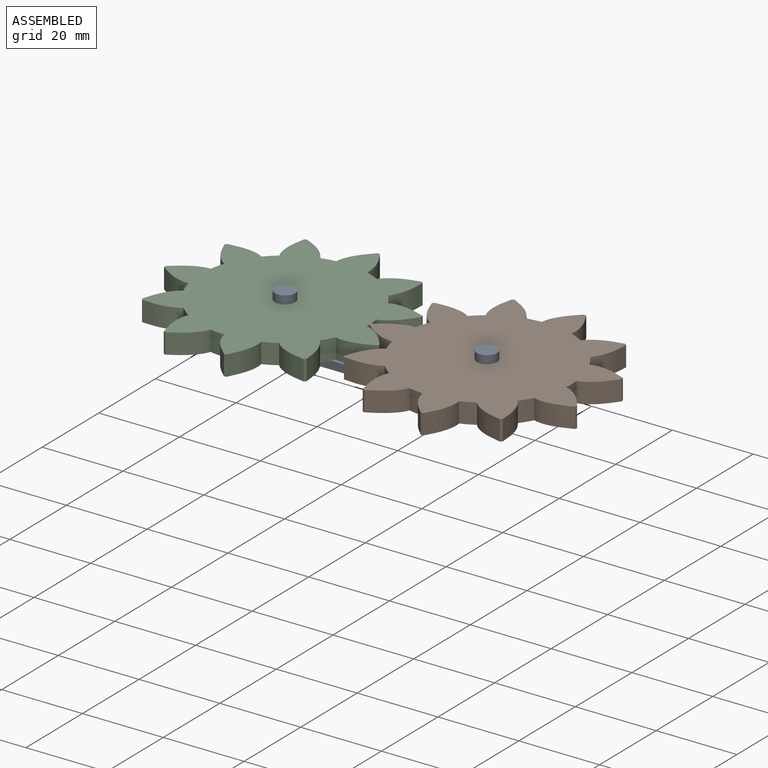
[diagram: assembled view]
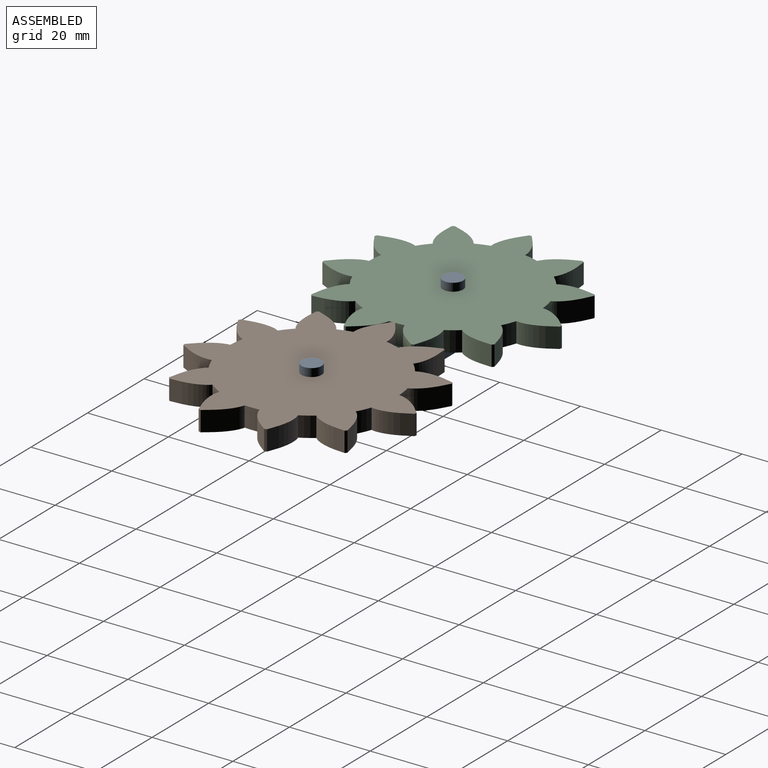
[diagram: assembled view, second angle]
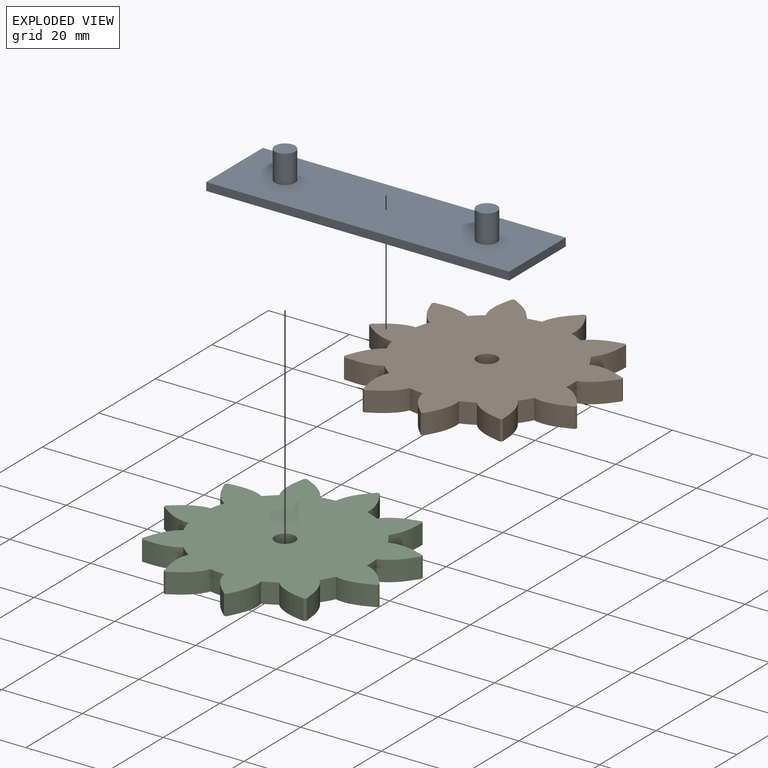
[diagram: exploded view]
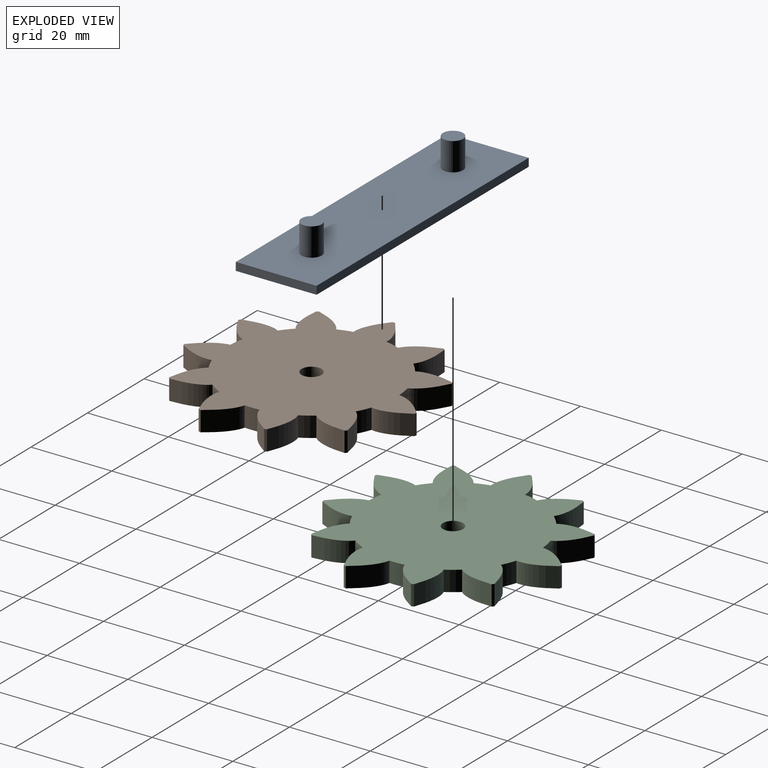
[diagram: exploded view, second angle]
ASSEMBLY  parts=3 mates=2
PART A: 10 faces, bbox 75x20x9 mm
  f0: plane 20x2mm, normal (-1,0,0), area 40mm2, adj f1,f3,f4,f5
  f1: plane 75x2mm, normal (0,-1,0), area 150mm2, adj f0,f2,f4,f5
  f2: plane 20x2mm, normal (1,0,0), area 40mm2, adj f1,f3,f4,f5
  f3: plane 75x2mm, normal (0,1,0), area 150mm2, adj f0,f2,f4,f5
  f4: plane 75x20mm, normal (0,0,-1), area 1500mm2, adj f0,f1,f2,f3
  f5: plane 75x20mm, normal (0,0,1), area 1460.7mm2, adj f0,f1,f2,f3,f6,f8
  f6: cylinder r=2.5mm len=7mm, axis (0,0,-1), area 110mm2, adj f5,f7
  f7: plane 5x5mm, normal (0,0,1), area 19.6mm2, adj f6
  f8: cylinder r=2.5mm len=7mm, axis (0,0,-1), area 110mm2, adj f5,f9
  f9: plane 5x5mm, normal (0,0,1), area 19.6mm2, adj f8
PART B: 223 faces, bbox 57.4x57.3x5 mm
  f0: cylinder r=21mm len=5mm, axis (0,0,-1), area 18.7mm2, adj f1,f220,f221,f222
  f1: plane 5x0.24mm, normal (-0.75,-0.66,0), area 1.6mm2, adj f0,f2,f221,f222
  f2: plane 5x0.29mm, normal (-0.68,-0.74,0), area 2mm2, adj f1,f3,f221,f222
  f3: plane 5x0.44mm, normal (-0.61,-0.79,0), area 2.8mm2, adj f2,f4,f221,f222
  f4: plane 5x0.61mm, normal (-0.54,-0.84,0), area 3.6mm2, adj f3,f5,f221,f222
  f5: plane 5x0.78mm, normal (-0.46,-0.89,0), area 4.4mm2, adj f4,f6,f221,f222
  f6: plane 5x0.96mm, normal (-0.39,-0.92,0), area 5.2mm2, adj f5,f7,f221,f222
  f7: plane 5x1.14mm, normal (-0.3,-0.95,0), area 6mm2, adj f6,f8,f221,f222
  f8: plane 5x1.33mm, normal (-0.22,-0.98,0), area 6.8mm2, adj f7,f9,f221,f222
  f9: plane 5x2.92mm, normal (-0.13,-0.99,0), area 14.7mm2, adj f8,f10,f221,f222
  f10: cylinder r=29mm len=5mm, axis (0,0,-1), area 3.1mm2, adj f9,f11,f221,f222
  f11: plane 5x2.9mm, normal (0.99,0.17,0), area 14.7mm2, adj f10,f12,f221,f222
  f12: plane 5x1.31mm, normal (0.97,0.25,0), area 6.8mm2, adj f11,f13,f221,f222
  f13: plane 5x1.13mm, normal (0.94,0.34,0), area 6mm2, adj f12,f14,f221,f222
  f14: plane 5x0.94mm, normal (0.91,0.42,0), area 5.2mm2, adj f13,f15,f221,f222
  f15: plane 5x0.76mm, normal (0.87,0.5,0), area 4.4mm2, adj f14,f16,f221,f222
  f16: plane 5x0.59mm, normal (0.82,0.57,0), area 3.6mm2, adj f15,f17,f221,f222
  f17: plane 5x0.43mm, normal (0.77,0.64,0), area 2.8mm2, adj f16,f18,f221,f222
  f18: plane 5x0.28mm, normal (0.71,0.7,0), area 2mm2, adj f17,f19,f221,f222
  f19: plane 5x0.25mm, normal (0.63,0.77,0), area 1.6mm2, adj f18,f20,f221,f222
  f20: cylinder r=21mm len=5mm, axis (0,0,-1), area 18.7mm2, adj f19,f21,f221,f222
  f21: plane 5x0.31mm, normal (-0.28,-0.96,0), area 1.6mm2, adj f20,f22,f221,f222
  f22: plane 5x0.39mm, normal (-0.17,-0.99,0), area 2mm2, adj f21,f23,f221,f222
  f23: plane 5x0.56mm, normal (-0.09,-1,0), area 2.8mm2, adj f22,f24,f221,f222
  f24: plane 5x0.72mm, normal (0,-1,0), area 3.6mm2, adj f23,f25,f221,f222
  f25: plane 5x0.88mm, normal (0.09,-1,0), area 4.4mm2, adj f24,f26,f221,f222
  f26: plane 5x1.02mm, normal (0.17,-0.98,0), area 5.2mm2, adj f25,f27,f221,f222
  f27: plane 5x1.16mm, normal (0.26,-0.97,0), area 6mm2, adj f26,f28,f221,f222
  f28: plane 5x1.28mm, normal (0.34,-0.94,0), area 6.8mm2, adj f27,f29,f221,f222
  f29: plane 5x2.67mm, normal (0.42,-0.91,0), area 14.7mm2, adj f28,f30,f221,f222
  f30: cylinder r=29mm len=5mm, axis (0,0,-1), area 3.1mm2, adj f29,f31,f221,f222
  f31: plane 5x2.17mm, normal (0.74,0.68,0), area 14.7mm2, adj f30,f32,f221,f222
  f32: plane 5x1mm, normal (0.68,0.74,0), area 6.8mm2, adj f31,f33,f221,f222
  f33: plane 5x0.95mm, normal (0.61,0.79,0), area 6mm2, adj f32,f34,f221,f222
  f34: plane 5x0.88mm, normal (0.54,0.84,0), area 5.2mm2, adj f33,f35,f221,f222
  f35: plane 5x0.78mm, normal (0.46,0.89,0), area 4.4mm2, adj f34,f36,f221,f222
  f36: plane 5x0.66mm, normal (0.38,0.92,0), area 3.6mm2, adj f35,f37,f221,f222
  f37: plane 5x0.53mm, normal (0.3,0.95,0), area 2.8mm2, adj f36,f38,f221,f222
  f38: plane 5x0.39mm, normal (0.22,0.98,0), area 2mm2, adj f37,f39,f221,f222
  f39: plane 5x0.32mm, normal (0.11,0.99,0), area 1.6mm2, adj f38,f40,f221,f222
  f40: cylinder r=21mm len=5mm, axis (0,0,-1), area 18.7mm2, adj f39,f41,f221,f222
  f41: plane 5x0.31mm, normal (0.29,-0.96,0), area 1.6mm2, adj f40,f42,f221,f222
  f42: plane 5x0.37mm, normal (0.39,-0.92,0), area 2mm2, adj f41,f43,f221,f222
  f43: plane 5x0.5mm, normal (0.47,-0.88,0), area 2.8mm2, adj f42,f44,f221,f222
  f44: plane 5x0.61mm, normal (0.54,-0.84,0), area 3.6mm2, adj f43,f45,f221,f222
  f45: plane 5x0.7mm, normal (0.61,-0.79,0), area 4.4mm2, adj f44,f46,f221,f222
  f46: plane 5x0.76mm, normal (0.68,-0.73,0), area 5.2mm2, adj f45,f47,f221,f222
  f47: plane 5x0.89mm, normal (0.74,-0.67,0), area 6mm2, adj f46,f48,f221,f222
  f48: plane 5x1.08mm, normal (0.8,-0.61,0), area 6.8mm2, adj f47,f49,f221,f222
  f49: plane 5x2.49mm, normal (0.85,-0.53,0), area 14.7mm2, adj f48,f50,f221,f222
  f50: cylinder r=29mm len=5mm, axis (0,0,-1), area 3.1mm2, adj f49,f51,f221,f222
  f51: plane 5x2.85mm, normal (0.26,0.97,0), area 14.7mm2, adj f50,f52,f221,f222
  f52: plane 5x1.34mm, normal (0.17,0.99,0), area 6.8mm2, adj f51,f53,f221,f222
  f53: plane 5x1.2mm, normal (0.08,1,0), area 6mm2, adj f52,f54,f221,f222
  f54: plane 5x1.04mm, normal (0,1,0), area 5.2mm2, adj f53,f55,f221,f222
  f55: plane 5x0.88mm, normal (-0.09,1,0), area 4.4mm2, adj f54,f56,f221,f222
  f56: plane 5x0.71mm, normal (-0.18,0.98,0), area 3.6mm2, adj f55,f57,f221,f222
  f57: plane 5x0.54mm, normal (-0.26,0.97,0), area 2.8mm2, adj f56,f58,f221,f222
  f58: plane 5x0.38mm, normal (-0.34,0.94,0), area 2mm2, adj f57,f59,f221,f222
  f59: plane 5x0.29mm, normal (-0.44,0.9,0), area 1.6mm2, adj f58,f60,f221,f222
  f60: cylinder r=21mm len=5mm, axis (0,0,-1), area 18.7mm2, adj f59,f61,f221,f222
  f61: plane 5x0.24mm, normal (0.76,-0.65,0), area 1.6mm2, adj f60,f62,f221,f222
  f62: plane 5x0.33mm, normal (0.82,-0.57,0), area 2mm2, adj f61,f63,f221,f222
  f63: plane 5x0.49mm, normal (0.87,-0.49,0), area 2.8mm2, adj f62,f64,f221,f222
  f64: plane 5x0.66mm, normal (0.91,-0.41,0), area 3.6mm2, adj f63,f65,f221,f222
  f65: plane 5x0.83mm, normal (0.94,-0.33,0), area 4.4mm2, adj f64,f66,f221,f222
  f66: plane 5x1.01mm, normal (0.97,-0.25,0), area 5.2mm2, adj f65,f67,f221,f222
  f67: plane 5x1.18mm, normal (0.99,-0.17,0), area 6mm2, adj f66,f68,f221,f222
  f68: plane 5x1.36mm, normal (1,-0.08,0), area 6.8mm2, adj f67,f69,f221,f222
  f69: plane 5x2.94mm, normal (1,0.01,0), area 14.7mm2, adj f68,f70,f221,f222
  f70: cylinder r=29mm len=5mm, axis (0,0,-1), area 3.1mm2, adj f69,f71,f221,f222
  f71: plane 5x2.8mm, normal (-0.31,0.95,0), area 14.7mm2, adj f70,f72,f221,f222
  f72: plane 5x1.25mm, normal (-0.39,0.92,0), area 6.8mm2, adj f71,f73,f221,f222
  f73: plane 5x1.06mm, normal (-0.47,0.88,0), area 6mm2, adj f72,f74,f221,f222
  f74: plane 5x0.87mm, normal (-0.54,0.84,0), area 5.2mm2, adj f73,f75,f221,f222
  f75: plane 5x0.69mm, normal (-0.61,0.79,0), area 4.4mm2, adj f74,f76,f221,f222
  f76: plane 5x0.53mm, normal (-0.68,0.73,0), area 3.6mm2, adj f75,f77,f221,f222
  f77: plane 5x0.42mm, normal (-0.74,0.67,0), area 2.8mm2, adj f76,f78,f221,f222
  f78: plane 5x0.32mm, normal (-0.8,0.6,0), area 2mm2, adj f77,f79,f221,f222
  f79: plane 5x0.27mm, normal (-0.86,0.52,0), area 1.6mm2, adj f78,f80,f221,f222
  f80: cylinder r=21mm len=5mm, axis (0,0,-1), area 18.7mm2, adj f79,f81,f221,f222
  f81: plane 5x0.32mm, normal (0.99,-0.14,0), area 1.6mm2, adj f80,f82,f221,f222
  f82: plane 5x0.4mm, normal (1,-0.03,0), area 2mm2, adj f81,f83,f221,f222
  f83: plane 5x0.56mm, normal (1,0.06,0), area 2.8mm2, adj f82,f84,f221,f222
  f84: plane 5x0.71mm, normal (0.99,0.14,0), area 3.6mm2, adj f83,f85,f221,f222
  f85: plane 5x0.86mm, normal (0.97,0.23,0), area 4.4mm2, adj f84,f86,f221,f222
  f86: plane 5x0.99mm, normal (0.95,0.31,0), area 5.2mm2, adj f85,f87,f221,f222
  f87: plane 5x1.1mm, normal (0.92,0.39,0), area 6mm2, adj f86,f88,f221,f222
  f88: plane 5x1.2mm, normal (0.88,0.47,0), area 6.8mm2, adj f87,f89,f221,f222
  f89: plane 5x2.46mm, normal (0.84,0.55,0), area 14.7mm2, adj f88,f90,f221,f222
  f90: cylinder r=29mm len=5mm, axis (0,0,-1), area 3.1mm2, adj f89,f91,f221,f222
  f91: plane 5x2.28mm, normal (-0.77,0.63,0), area 14.7mm2, adj f90,f92,f221,f222
  f92: plane 5x1.12mm, normal (-0.83,0.56,0), area 6.8mm2, adj f91,f93,f221,f222
  f93: plane 5x1.05mm, normal (-0.87,0.49,0), area 6mm2, adj f92,f94,f221,f222
  f94: plane 5x0.95mm, normal (-0.91,0.41,0), area 5.2mm2, adj f93,f95,f221,f222
  f95: plane 5x0.83mm, normal (-0.94,0.33,0), area 4.4mm2, adj f94,f96,f221,f222
  f96: plane 5x0.7mm, normal (-0.97,0.25,0), area 3.6mm2, adj f95,f97,f221,f222
  f97: plane 5x0.55mm, normal (-0.99,0.16,0), area 2.8mm2, adj f96,f98,f221,f222
  f98: plane 5x0.4mm, normal (-1,0.08,0), area 2mm2, adj f97,f99,f221,f222
  f99: plane 5x0.32mm, normal (-1,-0.03,0), area 1.6mm2, adj f98,f100,f221,f222
  f100: cylinder r=21mm len=5mm, axis (0,0,-1), area 18.7mm2, adj f99,f101,f221,f222
  f101: plane 5x0.29mm, normal (0.91,0.42,0), area 1.6mm2, adj f100,f102,f221,f222
  f102: plane 5x0.34mm, normal (0.86,0.52,0), area 2mm2, adj f101,f103,f221,f222
  f103: plane 5x0.45mm, normal (0.81,0.59,0), area 2.8mm2, adj f102,f104,f221,f222
  f104: plane 5x0.54mm, normal (0.76,0.66,0), area 3.6mm2, adj f103,f105,f221,f222
  f105: plane 5x0.63mm, normal (0.7,0.72,0), area 4.4mm2, adj f104,f106,f221,f222
  f106: plane 5x0.81mm, normal (0.63,0.78,0), area 5.2mm2, adj f105,f107,f221,f222
  f107: plane 5x0.99mm, normal (0.56,0.83,0), area 6mm2, adj f106,f108,f221,f222
  f108: plane 5x1.19mm, normal (0.49,0.87,0), area 6.8mm2, adj f107,f109,f221,f222
  f109: plane 5x2.69mm, normal (0.41,0.91,0), area 14.7mm2, adj f108,f110,f221,f222
  f110: cylinder r=29mm len=5mm, axis (0,0,-1), area 3.1mm2, adj f109,f111,f221,f222
  f111: plane 5x2.92mm, normal (-0.99,0.12,0), area 14.7mm2, adj f110,f112,f221,f222
  f112: plane 5x1.36mm, normal (-1,0.03,0), area 6.8mm2, adj f111,f113,f221,f222
  f113: plane 5x1.2mm, normal (-1,-0.06,0), area 6mm2, adj f112,f114,f221,f222
  f114: plane 5x1.03mm, normal (-0.99,-0.15,0), area 5.2mm2, adj f113,f115,f221,f222
  f115: plane 5x0.86mm, normal (-0.97,-0.23,0), area 4.4mm2, adj f114,f116,f221,f222
  f116: plane 5x0.68mm, normal (-0.95,-0.31,0), area 3.6mm2, adj f115,f117,f221,f222
  f117: plane 5x0.51mm, normal (-0.92,-0.4,0), area 2.8mm2, adj f116,f118,f221,f222
  f118: plane 5x0.35mm, normal (-0.88,-0.47,0), area 2mm2, adj f117,f119,f221,f222
  f119: plane 5x0.26mm, normal (-0.83,-0.56,0), area 1.6mm2, adj f118,f120,f221,f222
  f120: cylinder r=21mm len=5mm, axis (0,0,-1), area 18.7mm2, adj f119,f121,f221,f222
  f121: plane 5x0.27mm, normal (0.53,0.84,0), area 1.6mm2, adj f120,f122,f221,f222
  f122: plane 5x0.36mm, normal (0.44,0.9,0), area 2mm2, adj f121,f123,f221,f222
  f123: plane 5x0.52mm, normal (0.36,0.93,0), area 2.8mm2, adj f122,f124,f221,f222
  f124: plane 5x0.69mm, normal (0.28,0.96,0), area 3.6mm2, adj f123,f125,f221,f222
  f125: plane 5x0.86mm, normal (0.2,0.98,0), area 4.4mm2, adj f124,f126,f221,f222
  f126: plane 5x1.03mm, normal (0.11,0.99,0), area 5.2mm2, adj f125,f127,f221,f222
  f127: plane 5x1.2mm, normal (0.02,1,0), area 6mm2, adj f126,f128,f221,f222
  f128: plane 5x1.36mm, normal (-0.06,1,0), area 6.8mm2, adj f127,f129,f221,f222
  f129: plane 5x2.91mm, normal (-0.15,0.99,0), area 14.7mm2, adj f128,f130,f221,f222
  f130: cylinder r=29mm len=5mm, axis (0,0,-1), area 3.1mm2, adj f129,f131,f221,f222
  f131: plane 5x2.64mm, normal (-0.9,-0.44,0), area 14.7mm2, adj f130,f132,f221,f222
  f132: plane 5x1.16mm, normal (-0.86,-0.52,0), area 6.8mm2, adj f131,f133,f221,f222
  f133: plane 5x0.97mm, normal (-0.81,-0.59,0), area 6mm2, adj f132,f134,f221,f222
  f134: plane 5x0.78mm, normal (-0.75,-0.66,0), area 5.2mm2, adj f133,f135,f221,f222
  f135: plane 5x0.63mm, normal (-0.69,-0.72,0), area 4.4mm2, adj f134,f136,f221,f222
  f136: plane 5x0.56mm, normal (-0.63,-0.78,0), area 3.6mm2, adj f135,f137,f221,f222
  f137: plane 5x0.46mm, normal (-0.56,-0.83,0), area 2.8mm2, adj f136,f138,f221,f222
  f138: plane 5x0.35mm, normal (-0.48,-0.87,0), area 2mm2, adj f137,f139,f221,f222
  f139: plane 5x0.29mm, normal (-0.39,-0.92,0), area 1.6mm2, adj f138,f140,f221,f222
  f140: cylinder r=21mm len=5mm, axis (0,0,-1), area 18.7mm2, adj f139,f141,f221,f222
  f141: plane 5x0.32mm, normal (-0.01,1,0), area 1.6mm2, adj f140,f142,f221,f222
  f142: plane 5x0.4mm, normal (-0.11,0.99,0), area 2mm2, adj f141,f143,f221,f222
  f143: plane 5x0.55mm, normal (-0.2,0.98,0), area 2.8mm2, adj f142,f144,f221,f222
  f144: plane 5x0.69mm, normal (-0.28,0.96,0), area 3.6mm2, adj f143,f145,f221,f222
  f145: plane 5x0.82mm, normal (-0.37,0.93,0), area 4.4mm2, adj f144,f146,f221,f222
  f146: plane 5x0.93mm, normal (-0.44,0.9,0), area 5.2mm2, adj f145,f147,f221,f222
  f147: plane 5x1.02mm, normal (-0.52,0.85,0), area 6mm2, adj f146,f148,f221,f222
  f148: plane 5x1.09mm, normal (-0.59,0.8,0), area 6.8mm2, adj f147,f149,f221,f222
  f149: plane 5x2.21mm, normal (-0.66,0.75,0), area 14.7mm2, adj f148,f150,f221,f222
  f150: cylinder r=29mm len=5mm, axis (0,0,-1), area 3.1mm2, adj f149,f151,f221,f222
  f151: plane 5x2.52mm, normal (-0.52,-0.86,0), area 14.7mm2, adj f150,f152,f221,f222
  f152: plane 5x1.22mm, normal (-0.44,-0.9,0), area 6.8mm2, adj f151,f153,f221,f222
  f153: plane 5x1.12mm, normal (-0.36,-0.93,0), area 6mm2, adj f152,f154,f221,f222
  f154: plane 5x1mm, normal (-0.28,-0.96,0), area 5.2mm2, adj f153,f155,f221,f222
  f155: plane 5x0.86mm, normal (-0.19,-0.98,0), area 4.4mm2, adj f154,f156,f221,f222
  f156: plane 5x0.72mm, normal (-0.11,-0.99,0), area 3.6mm2, adj f155,f157,f221,f222
  f157: plane 5x0.56mm, normal (-0.02,-1,0), area 2.8mm2, adj f156,f158,f221,f222
  f158: plane 5x0.4mm, normal (0.07,-1,0), area 2mm2, adj f157,f159,f221,f222
  f159: plane 5x0.32mm, normal (0.17,-0.99,0), area 1.6mm2, adj f158,f160,f221,f222
  f160: cylinder r=21mm len=5mm, axis (0,0,-1), area 18.7mm2, adj f159,f161,f221,f222
  f161: plane 5x0.27mm, normal (-0.55,0.84,0), area 1.6mm2, adj f160,f162,f221,f222
  f162: plane 5x0.31mm, normal (-0.63,0.77,0), area 2mm2, adj f161,f163,f221,f222
  f163: plane 5x0.4mm, normal (-0.7,0.72,0), area 2.8mm2, adj f162,f164,f221,f222
  f164: plane 5x0.54mm, normal (-0.76,0.65,0), area 3.6mm2, adj f163,f165,f221,f222
  f165: plane 5x0.71mm, normal (-0.81,0.59,0), area 4.4mm2, adj f164,f166,f221,f222
  f166: plane 5x0.89mm, normal (-0.86,0.51,0), area 5.2mm2, adj f165,f167,f221,f222
  f167: plane 5x1.08mm, normal (-0.9,0.44,0), area 6mm2, adj f166,f168,f221,f222
  f168: plane 5x1.27mm, normal (-0.93,0.36,0), area 6.8mm2, adj f167,f169,f221,f222
  f169: plane 5x2.83mm, normal (-0.96,0.27,0), area 14.7mm2, adj f168,f170,f221,f222
  f170: cylinder r=29mm len=5mm, axis (0,0,-1), area 3.1mm2, adj f169,f171,f221,f222
  f171: plane 5x2.94mm, normal (0.03,-1,0), area 14.7mm2, adj f170,f172,f221,f222
  f172: plane 5x1.35mm, normal (0.11,-0.99,0), area 6.8mm2, adj f171,f173,f221,f222
  f173: plane 5x1.18mm, normal (0.2,-0.98,0), area 6mm2, adj f172,f174,f221,f222
  f174: plane 5x1mm, normal (0.28,-0.96,0), area 5.2mm2, adj f173,f175,f221,f222
  f175: plane 5x0.82mm, normal (0.37,-0.93,0), area 4.4mm2, adj f174,f176,f221,f222
  f176: plane 5x0.64mm, normal (0.45,-0.89,0), area 3.6mm2, adj f175,f177,f221,f222
  f177: plane 5x0.48mm, normal (0.52,-0.85,0), area 2.8mm2, adj f176,f178,f221,f222
  f178: plane 5x0.32mm, normal (0.59,-0.8,0), area 2mm2, adj f177,f179,f221,f222
  f179: plane 5x0.24mm, normal (0.68,-0.74,0), area 1.6mm2, adj f178,f180,f221,f222
  f180: cylinder r=21mm len=5mm, axis (0,0,-1), area 18.7mm2, adj f179,f181,f221,f222
  f181: plane 5x0.29mm, normal (-0.91,0.41,0), area 1.6mm2, adj f180,f182,f221,f222
  f182: plane 5x0.38mm, normal (-0.95,0.31,0), area 2mm2, adj f181,f183,f221,f222
  f183: plane 5x0.55mm, normal (-0.97,0.23,0), area 2.8mm2, adj f182,f184,f221,f222
  f184: plane 5x0.71mm, normal (-0.99,0.14,0), area 3.6mm2, adj f183,f185,f221,f222
  f185: plane 5x0.88mm, normal (-1,0.05,0), area 4.4mm2, adj f184,f186,f221,f222
  f186: plane 5x1.04mm, normal (-1,-0.03,0), area 5.2mm2, adj f185,f187,f221,f222
  f187: plane 5x1.19mm, normal (-0.99,-0.12,0), area 6mm2, adj f186,f188,f221,f222
  f188: plane 5x1.33mm, normal (-0.98,-0.21,0), area 6.8mm2, adj f187,f189,f221,f222
  f189: plane 5x2.82mm, normal (-0.96,-0.29,0), area 14.7mm2, adj f188,f190,f221,f222
  f190: cylinder r=29mm len=5mm, axis (0,0,-1), area 3.1mm2, adj f189,f191,f221,f222
  f191: plane 5x2.43mm, normal (0.56,-0.83,0), area 14.7mm2, adj f190,f192,f221,f222
  f192: plane 5x1.05mm, normal (0.63,-0.77,0), area 6.8mm2, adj f191,f193,f221,f222
  f193: plane 5x0.86mm, normal (0.7,-0.72,0), area 6mm2, adj f192,f194,f221,f222
  f194: plane 5x0.79mm, normal (0.76,-0.65,0), area 5.2mm2, adj f193,f195,f221,f222
  f195: plane 5x0.71mm, normal (0.81,-0.58,0), area 4.4mm2, adj f194,f196,f221,f222
  f196: plane 5x0.62mm, normal (0.86,-0.51,0), area 3.6mm2, adj f195,f197,f221,f222
  f197: plane 5x0.5mm, normal (0.9,-0.43,0), area 2.8mm2, adj f196,f198,f221,f222
  f198: plane 5x0.37mm, normal (0.93,-0.35,0), area 2mm2, adj f197,f199,f221,f222
  f199: plane 5x0.31mm, normal (0.97,-0.25,0), area 1.6mm2, adj f198,f200,f221,f222
  f200: cylinder r=21mm len=5mm, axis (0,0,-1), area 18.7mm2, adj f199,f201,f221,f222
  f201: plane 5x0.32mm, normal (-0.99,-0.15,0), area 1.6mm2, adj f200,f202,f221,f222
  f202: plane 5x0.39mm, normal (-0.97,-0.25,0), area 2mm2, adj f201,f203,f221,f222
  f203: plane 5x0.53mm, normal (-0.94,-0.34,0), area 2.8mm2, adj f202,f204,f221,f222
  f204: plane 5x0.65mm, normal (-0.91,-0.42,0), area 3.6mm2, adj f203,f205,f221,f222
  f205: plane 5x0.76mm, normal (-0.87,-0.49,0), area 4.4mm2, adj f204,f206,f221,f222
  f206: plane 5x0.86mm, normal (-0.82,-0.57,0), area 5.2mm2, adj f205,f207,f221,f222
  f207: plane 5x0.92mm, normal (-0.77,-0.64,0), area 6mm2, adj f206,f208,f221,f222
  f208: plane 5x0.97mm, normal (-0.71,-0.7,0), area 6.8mm2, adj f207,f209,f221,f222
  f209: plane 5x2.24mm, normal (-0.65,-0.76,0), area 14.7mm2, adj f208,f210,f221,f222
  f210: cylinder r=29mm len=5mm, axis (0,0,-1), area 3.1mm2, adj f209,f211,f221,f222
  f211: plane 5x2.71mm, normal (0.92,-0.39,0), area 14.7mm2, adj f210,f212,f221,f222
  f212: plane 5x1.29mm, normal (0.95,-0.31,0), area 6.8mm2, adj f211,f213,f221,f222
  f213: plane 5x1.17mm, normal (0.97,-0.22,0), area 6mm2, adj f212,f214,f221,f222
  f214: plane 5x1.03mm, normal (0.99,-0.14,0), area 5.2mm2, adj f213,f215,f221,f222
  f215: plane 5x0.88mm, normal (1,-0.05,0), area 4.4mm2, adj f214,f216,f221,f222
  f216: plane 5x0.72mm, normal (1,0.03,0), area 3.6mm2, adj f215,f217,f221,f222
  f217: plane 5x0.56mm, normal (0.99,0.12,0), area 2.8mm2, adj f216,f218,f221,f222
  f218: plane 5x0.39mm, normal (0.98,0.21,0), area 2mm2, adj f217,f220,f221,f222
  f219: cylinder r=2.5mm len=5mm, axis (0,0,-1), area 78.5mm2, adj f221,f222
  f220: plane 5x0.3mm, normal (0.95,0.31,0), area 1.6mm2, adj f0,f218,f221,f222
  f221: plane 57.41x57.27mm, normal (0,0,1), area 1857.1mm2, adj f0,f1,f2,f3,f4,f5,f6,f7
  f222: plane 57.41x57.27mm, normal (0,0,-1), area 1857.1mm2, adj f0,f1,f2,f3,f4,f5,f6,f7
PART C: same geometry as B
PLACE A t=(23.95,0.25,1.12)mm fixed
PLACE B rot(axis=(0,0,1),27.5deg) t=(68.31,23.31,1.12)mm
PLACE C rot(axis=(0,0,1),62.5deg) t=(-2.99,44.61,1.12)mm
MATE revolute A.f8 <-> B.f219  axis (0,0,1) through (23.95,0.25,1.12)mm
MATE revolute A.f6 <-> C.f219  axis (0,0,1) through (-26.05,0.25,1.12)mm
